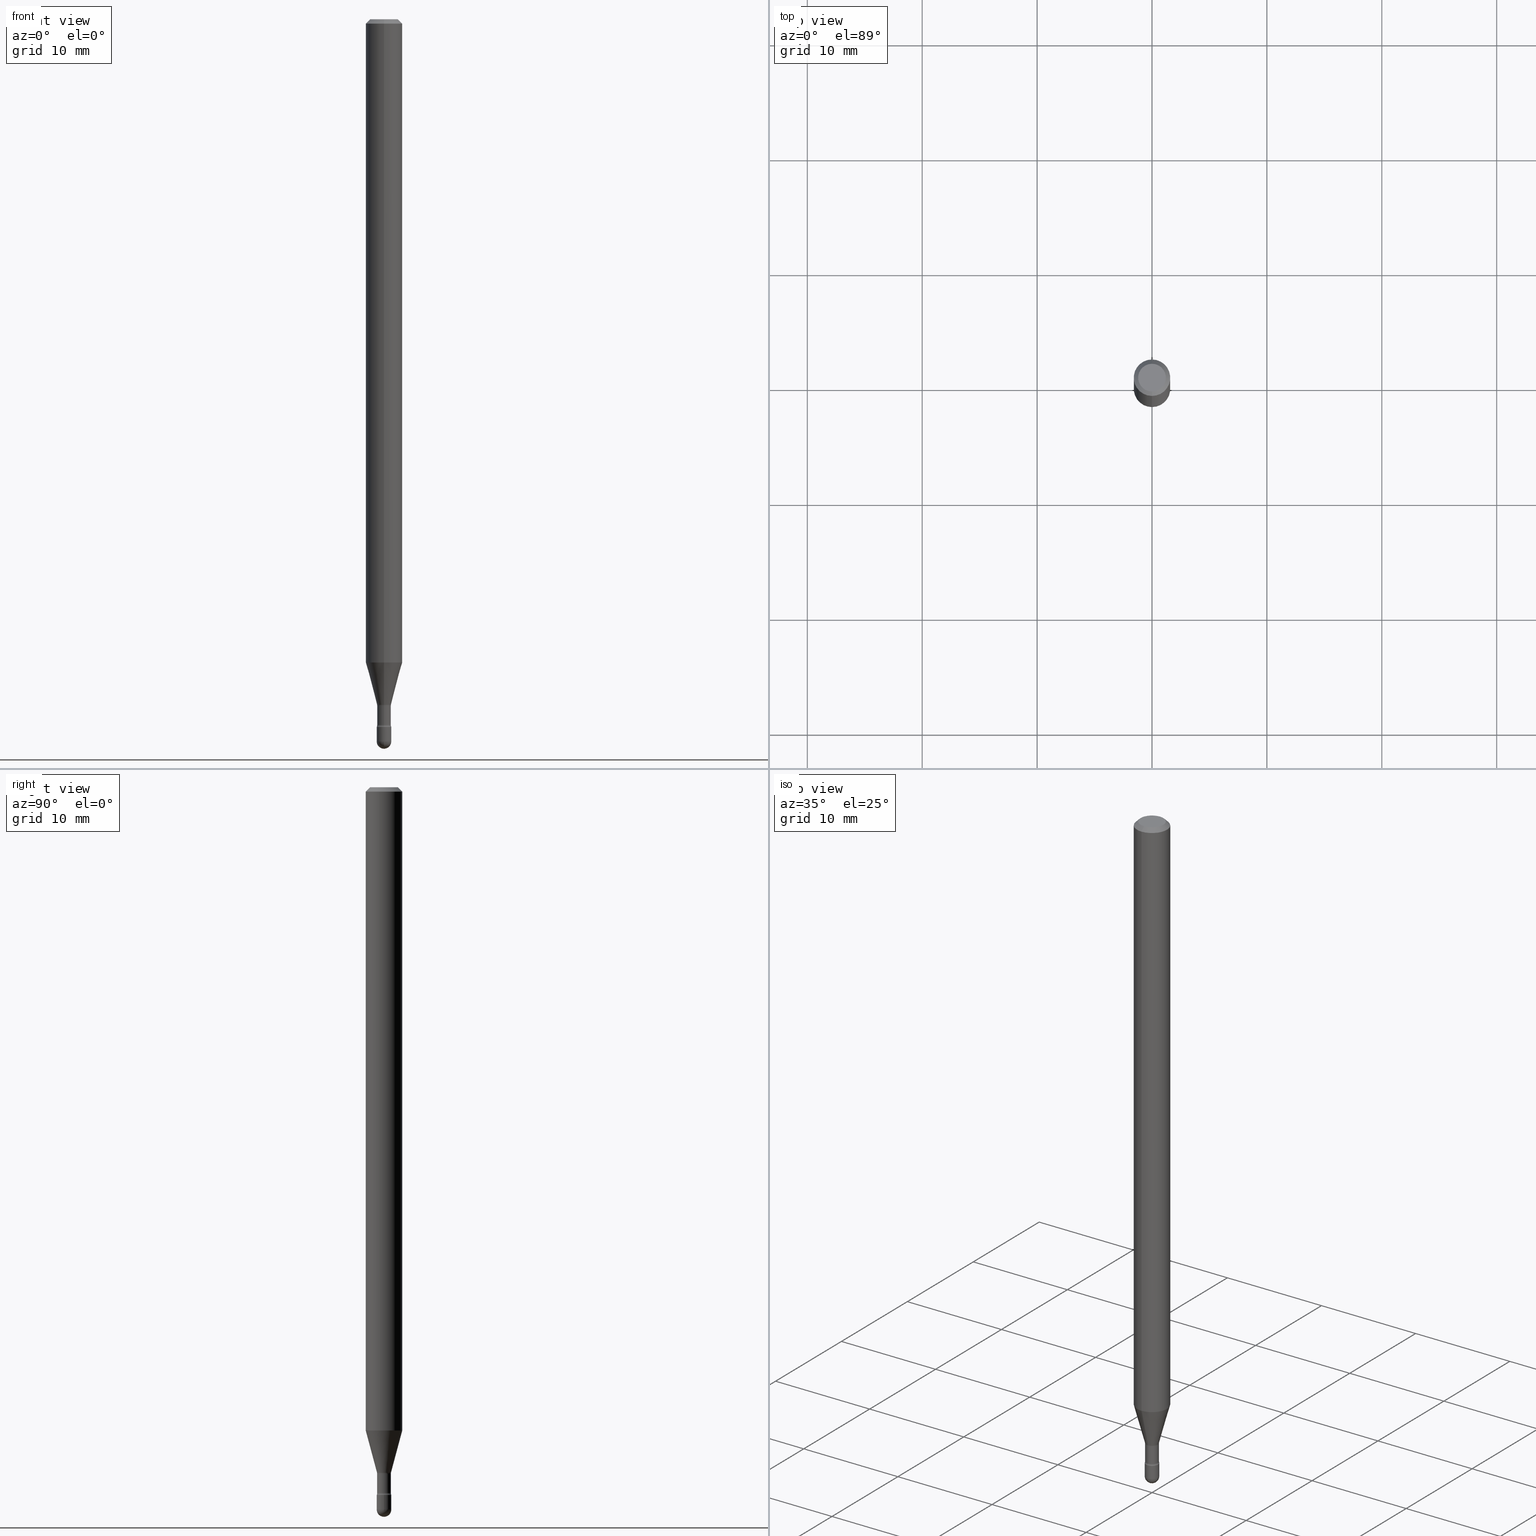
[diagram: canonical four-view strip — front | top / right | iso, engineering-drawing reading convention]
A machine part, canonical four-view strip (front | top / right | iso — engineering-drawing reading convention). The complete STEP part file that produces these views, byte-faithful:
ISO-10303-21;
HEADER;
FILE_DESCRIPTION (( 'STEP AP203' ),
    '1' );
FILE_NAME ('03815.STEP',
    '2024-04-09T20:34:50',
    ( '' ),
    ( '' ),
    'SwSTEP 2.0',
    'SolidWorks 2023',
    '' );
FILE_SCHEMA (( 'CONFIG_CONTROL_DESIGN' ));
ENDSEC;

DATA;
#1 = DIRECTION ( 'NONE',  ( -2.445460272345158402E-29, 3.491493559787710048E-15, 1.000000000000000000 ) ) ;
#2 = CARTESIAN_POINT ( 'NONE',  ( 5.930241160437010155E-29, -8.466871882485198128E-15, -2.425000000000000266 ) ) ;
#3 = VECTOR ( 'NONE', #316, 39.37007874015748143 ) ;
#4 = CARTESIAN_POINT ( 'NONE',  ( -1.745740669420974292E-16, -0.02500000000000847378, -2.425000000000000266 ) ) ;
#5 = AXIS2_PLACEMENT_3D ( 'NONE', #230, #402, #12 ) ;
#6 = DIRECTION ( 'NONE',  ( -6.982962677686265922E-15, -1.000000000000000000, 3.491493559787710442E-15 ) ) ;
#7 = EDGE_LOOP ( 'NONE', ( #455, #243, #286, #18 ) ) ;
#8 = DIRECTION ( 'NONE',  ( 7.105427357601001859E-15, 1.000000000000000000, 0.000000000000000000 ) ) ;
#9 = ORIENTED_EDGE ( 'NONE', *, *, #499, .F. ) ;
#10 = PRODUCT_DEFINITION_SHAPE ( 'NONE', 'NONE',  #401 ) ;
#11 = DIRECTION ( 'NONE',  ( -6.982962677686265922E-15, -1.000000000000000000, 4.370956789862821150E-15 ) ) ;
#12 = DIRECTION ( 'NONE',  ( 1.000000000000000000, -6.982962677686267499E-15, 4.876176775795936353E-29 ) ) ;
#13 = AXIS2_PLACEMENT_3D ( 'NONE', #206, #270, #528 ) ;
#14 = AXIS2_PLACEMENT_3D ( 'NONE', #27, #301, #423 ) ;
#15 = EDGE_CURVE ( 'NONE', #355, #415, #332, .T. ) ;
#16 = ORIENTED_EDGE ( 'NONE', *, *, #499, .T. ) ;
#17 = COORDINATED_UNIVERSAL_TIME_OFFSET ( 5, 0, .BEHIND. ) ;
#18 = ORIENTED_EDGE ( 'NONE', *, *, #19, .F. ) ;
#19 = EDGE_CURVE ( 'NONE', #410, #192, #193, .T. ) ;
#20 = AXIS2_PLACEMENT_3D ( 'NONE', #484, #348, #306 ) ;
#21 = APPROVAL_PERSON_ORGANIZATION ( #219, #463, #172 ) ;
#22 = VERTEX_POINT ( 'NONE', #290 ) ;
#23 = ORIENTED_EDGE ( 'NONE', *, *, #491, .F. ) ;
#24 = ORIENTED_EDGE ( 'NONE', *, *, #236, .T. ) ;
#25 = DIRECTION ( 'NONE',  ( -2.445460272345158683E-29, 3.491493559787710442E-15, 1.000000000000000000 ) ) ;
#26 = EDGE_LOOP ( 'NONE', ( #422, #505, #365, #23 ) ) ;
#27 = CARTESIAN_POINT ( 'NONE',  ( 6.052535295308213750E-29, -8.641416313636786609E-15, -2.475000000000000089 ) ) ;
#28 = AXIS2_PLACEMENT_3D ( 'NONE', #153, #287, #250 ) ;
#29 = VERTEX_POINT ( 'NONE', #466 ) ;
#30 = CIRCLE ( 'NONE', #549, 0.02500000000000000139 ) ;
#31 = CARTESIAN_POINT ( 'NONE',  ( 0.02500000000000000486, -8.728703347107863365E-15, -2.475000000000000089 ) ) ;
#32 = CARTESIAN_POINT ( 'NONE',  ( 2.023490802064160390E-45, -2.889145452837646256E-31, -8.274645157667861515E-17 ) ) ;
#33 = FACE_OUTER_BOUND ( 'NONE', #326, .T. ) ;
#34 = DIRECTION ( 'NONE',  ( 1.000000000000000000, -7.105427357601001070E-15, 4.926315658205488542E-29 ) ) ;
#35 = EDGE_LOOP ( 'NONE', ( #284, #66, #532, #108 ) ) ;
#36 = EDGE_CURVE ( 'NONE', #321, #469, #151, .T. ) ;
#37 = DATE_AND_TIME ( #42, #195 ) ;
#38 = CARTESIAN_POINT ( 'NONE',  ( 5.930261854998957144E-29, -8.466842246694628363E-15, -2.425000000000000266 ) ) ;
#39 = DATE_AND_TIME ( #254, #226 ) ;
#40 = PLANE ( 'NONE',  #394 ) ;
#41 = AXIS2_PLACEMENT_3D ( 'NONE', #115, #476, #367 ) ;
#42 = CALENDAR_DATE ( 2024, 9, 4 ) ;
#43 = DIRECTION ( 'NONE',  ( 6.982962677686265922E-15, 1.000000000000000000, -3.491493559787710442E-15 ) ) ;
#44 = DIRECTION ( 'NONE',  ( -1.807323732225330928E-15, -0.2588190451025182970, 0.9659258262890689783 ) ) ;
#45 = PERSON_AND_ORGANIZATION ( #276, #116 ) ;
#46 = DIRECTION ( 'NONE',  ( -6.982962677686265922E-15, -1.000000000000000000, 3.491493559787708075E-15 ) ) ;
#47 = CARTESIAN_POINT ( 'NONE',  ( 4.440892098501169490E-16, 0.06249999999999995837, -0.01500000000000030129 ) ) ;
#48 = CARTESIAN_POINT ( 'NONE',  ( 5.390894942624073445E-29, -7.696823042483457732E-15, -2.204450018504814590 ) ) ;
#49 = VERTEX_POINT ( 'NONE', #31 ) ;
#50 = AXIS2_PLACEMENT_3D ( 'NONE', #91, #34, #377 ) ;
#51 = PRODUCT_DEFINITION_FORMATION_WITH_SPECIFIED_SOURCE ( 'ANY', '', #403, .NOT_KNOWN. ) ;
#52 = APPROVAL_PERSON_ORGANIZATION ( #205, #564, #375 ) ;
#53 = CARTESIAN_POINT ( 'NONE',  ( -3.773273898774340269E-16, -0.04749999999999999362, 8.309949251323760570E-17 ) ) ;
#54 = EDGE_CURVE ( 'NONE', #196, #191, #459, .T. ) ;
#55 = VECTOR ( 'NONE', #341, 39.37007874015748143 ) ;
#56 = ORIENTED_EDGE ( 'NONE', *, *, #185, .T. ) ;
#57 = ORIENTED_EDGE ( 'NONE', *, *, #352, .T. ) ;
#58 = CIRCLE ( 'NONE', #20, 0.02500000000000000486 ) ;
#59 = SECURITY_CLASSIFICATION ( '', '', #129 ) ;
#60 = DIRECTION ( 'NONE',  ( -6.982962677686267499E-15, -1.000000000000000000, 0.000000000000000000 ) ) ;
#61 = DIRECTION ( 'NONE',  ( -2.445460272345158683E-29, 3.491493559787710442E-15, 1.000000000000000000 ) ) ;
#62 = ORIENTED_EDGE ( 'NONE', *, *, #283, .F. ) ;
#63 = EDGE_LOOP ( 'NONE', ( #496, #548, #362, #157 ) ) ;
#64 = FACE_OUTER_BOUND ( 'NONE', #546, .T. ) ;
#65 = EDGE_CURVE ( 'NONE', #49, #101, #525, .T. ) ;
#66 = ORIENTED_EDGE ( 'NONE', *, *, #543, .F. ) ;
#67 = EDGE_LOOP ( 'NONE', ( #235, #143, #500, #406 ) ) ;
#68 = CIRCLE ( 'NONE', #432, 0.02350000000000000352 ) ;
#69 = DIRECTION ( 'NONE',  ( -2.445460272345158402E-29, 3.491493559787710048E-15, 1.000000000000000000 ) ) ;
#70 = DIRECTION ( 'NONE',  ( -2.445460272345158402E-29, 3.491493559787710048E-15, 1.000000000000000000 ) ) ;
#71 = COORDINATED_UNIVERSAL_TIME_OFFSET ( 5, 0, .BEHIND. ) ;
#72 = ORIENTED_EDGE ( 'NONE', *, *, #248, .F. ) ;
#73 = FACE_OUTER_BOUND ( 'NONE', #327, .T. ) ;
#74 = DIRECTION ( 'NONE',  ( -2.445460272345158402E-29, 3.491493559787710048E-15, 1.000000000000000000 ) ) ;
#75 = EDGE_CURVE ( 'NONE', #241, #29, #477, .T. ) ;
#76 = CARTESIAN_POINT ( 'NONE',  ( 5.914272527905343055E-29, -8.444013725215714647E-15, -2.418461651584689065 ) ) ;
#77 = CARTESIAN_POINT ( 'NONE',  ( 6.052535295308213750E-29, -8.641416313636786609E-15, -2.475000000000000089 ) ) ;
#78 = DIRECTION ( 'NONE',  ( 1.000000000000000000, -6.982962677686254878E-15, 0.000000000000000000 ) ) ;
#79 = CARTESIAN_POINT ( 'NONE',  ( 6.052535295308213750E-29, -8.641416313636786609E-15, -2.475000000000000089 ) ) ;
#80 = PERSON_AND_ORGANIZATION_ROLE ( 'classification_officer' ) ;
#81 = CARTESIAN_POINT ( 'NONE',  ( 5.751660904300198337E-29, -8.211904823212965684E-15, -2.351974787463811278 ) ) ;
#82 = CIRCLE ( 'NONE', #502, 0.02401111260566398189 ) ;
#83 = CIRCLE ( 'NONE', #152, 0.02499999999999993894 ) ;
#84 = PLANE ( 'NONE',  #510 ) ;
#85 = DATE_AND_TIME ( #213, #274 ) ;
#86 = FACE_OUTER_BOUND ( 'NONE', #465, .T. ) ;
#87 = CARTESIAN_POINT ( 'NONE',  ( 5.751680975676666487E-29, -8.211876079859469508E-15, -2.351974787463811278 ) ) ;
#88 = CARTESIAN_POINT ( 'NONE',  ( 6.052535295308213750E-29, -8.641416313636786609E-15, -2.475000000000000089 ) ) ;
#89 = ADVANCED_FACE ( 'NONE', ( #344 ), #136, .T. ) ;
#90 = CC_DESIGN_PERSON_AND_ORGANIZATION_ASSIGNMENT ( #208, #560, ( #51 ) ) ;
#91 = CARTESIAN_POINT ( 'NONE',  ( 2.735589532676977326E-16, 0.03849999999999156874, -2.418461651584689065 ) ) ;
#92 = CARTESIAN_POINT ( 'NONE',  ( 5.742166928912329898E-29, -8.198349847776076090E-15, -2.348092501787273356 ) ) ;
#93 = AXIS2_PLACEMENT_3D ( 'NONE', #87, #438, #6 ) ;
#94 = AXIS2_PLACEMENT_3D ( 'NONE', #217, #69, #123 ) ;
#95 = EDGE_CURVE ( 'NONE', #49, #242, #223, .T. ) ;
#96 = DIRECTION ( 'NONE',  ( 1.000000000000000000, -6.982962677686265922E-15, 4.883557194083112340E-29 ) ) ;
#97 = APPLICATION_CONTEXT ( 'configuration controlled 3d designs of mechanical parts and assemblies' ) ;
#98 = CIRCLE ( 'NONE', #382, 0.04749999999999999362 ) ;
#99 = ORIENTED_EDGE ( 'NONE', *, *, #543, .T. ) ;
#100 = EDGE_CURVE ( 'NONE', #410, #146, #260, .T. ) ;
#101 = VERTEX_POINT ( 'NONE', #215 ) ;
#102 = EDGE_LOOP ( 'NONE', ( #240, #295, #371, #199 ) ) ;
#103 = ORIENTED_EDGE ( 'NONE', *, *, #236, .F. ) ;
#104 = AXIS2_PLACEMENT_3D ( 'NONE', #76, #472, #137 ) ;
#105 = ORIENTED_EDGE ( 'NONE', *, *, #450, .T. ) ;
#106 =( NAMED_UNIT ( * ) SI_UNIT ( $, .STERADIAN. ) SOLID_ANGLE_UNIT ( ) );
#107 = ADVANCED_FACE ( 'NONE', ( #393 ), #369, .F. ) ;
#108 = ORIENTED_EDGE ( 'NONE', *, *, #227, .T. ) ;
#109 = CARTESIAN_POINT ( 'NONE',  ( 0.000000000000000000, 0.000000000000000000, 0.000000000000000000 ) ) ;
#110 = VERTEX_POINT ( 'NONE', #47 ) ;
#111 = DIRECTION ( 'NONE',  ( -1.000000000000000000, 6.982962677686266711E-15, -4.883557194083112901E-29 ) ) ;
#112 = CLOSED_SHELL ( 'NONE', ( #519, #325, #288, #399, #398 ) ) ;
#113 = ORIENTED_EDGE ( 'NONE', *, *, #389, .F. ) ;
#114 = VECTOR ( 'NONE', #559, 39.37007874015748143 ) ;
#115 = CARTESIAN_POINT ( 'NONE',  ( 3.668190408517757992E-31, -5.237240339681594062E-17, -0.01500000000000008271 ) ) ;
#116 = ORGANIZATION ( 'UNSPECIFIED', 'UNSPECIFIED', '' ) ;
#117 = ADVANCED_FACE ( 'NONE', ( #349 ), #404, .T. ) ;
#118 = APPLICATION_PROTOCOL_DEFINITION ( 'international standard', 'config_control_design', 1994, #439 ) ;
#119 = CARTESIAN_POINT ( 'NONE',  ( 5.914251889140615573E-29, -8.444043281101490470E-15, -2.418461651584689065 ) ) ;
#120 = CARTESIAN_POINT ( 'NONE',  ( 5.751680975676666487E-29, -8.211876079859469508E-15, -2.351974787463811278 ) ) ;
#121 = LINE ( 'NONE', #381, #139 ) ;
#122 = ORIENTED_EDGE ( 'NONE', *, *, #489, .F. ) ;
#123 = DIRECTION ( 'NONE',  ( -6.982962677686265922E-15, -1.000000000000000000, 3.491493559787710837E-15 ) ) ;
#124 = APPROVAL_DATE_TIME ( #39, #239 ) ;
#125 = LINE ( 'NONE', #324, #346 ) ;
#126 = CARTESIAN_POINT ( 'NONE',  ( -1.676687031750163775E-16, -0.02401111260567218020, -2.348092501787273356 ) ) ;
#127 = DIRECTION ( 'NONE',  ( -6.982962677686267499E-15, -1.000000000000000000, 0.000000000000000000 ) ) ;
#128 = DIRECTION ( 'NONE',  ( -6.982962677686265922E-15, -1.000000000000000000, 3.491493559787710442E-15 ) ) ;
#129 = SECURITY_CLASSIFICATION_LEVEL ( 'unclassified' ) ;
#130 = DIRECTION ( 'NONE',  ( -2.445460272345158402E-29, 3.491493559787710048E-15, 1.000000000000000000 ) ) ;
#131 = ADVANCED_FACE ( 'NONE', ( #86 ), #174, .F. ) ;
#132 = CIRCLE ( 'NONE', #145, 0.02350000000000000352 ) ;
#133 = AXIS2_PLACEMENT_3D ( 'NONE', #304, #261, #252 ) ;
#134 = DIRECTION ( 'NONE',  ( -6.982962677686265922E-15, -1.000000000000000000, 3.491493559787710442E-15 ) ) ;
#135 = FACE_OUTER_BOUND ( 'NONE', #368, .T. ) ;
#136 = CYLINDRICAL_SURFACE ( 'NONE', #285, 0.02349999999999999312 ) ;
#137 = DIRECTION ( 'NONE',  ( -6.982962677686265922E-15, -1.000000000000000000, 3.491493559787710442E-15 ) ) ;
#138 = CC_DESIGN_DATE_AND_TIME_ASSIGNMENT ( #526, #351, ( #401 ) ) ;
#139 = VECTOR ( 'NONE', #516, 39.37007874015748143 ) ;
#140 = DIRECTION ( 'NONE',  ( -6.982962677686265133E-15, -1.000000000000000000, 0.000000000000000000 ) ) ;
#141 = ORIENTED_EDGE ( 'NONE', *, *, #75, .T. ) ;
#142 = LENGTH_MEASURE_WITH_UNIT ( LENGTH_MEASURE( 0.02539999999999999897 ), #231 );
#143 = ORIENTED_EDGE ( 'NONE', *, *, #248, .T. ) ;
#144 = ADVANCED_FACE ( 'NONE', ( #135 ), #411, .T. ) ;
#145 = AXIS2_PLACEMENT_3D ( 'NONE', #170, #340, #173 ) ;
#146 = VERTEX_POINT ( 'NONE', #440 ) ;
#147 = EDGE_CURVE ( 'NONE', #415, #192, #132, .T. ) ;
#148 = ORIENTED_EDGE ( 'NONE', *, *, #189, .F. ) ;
#149 = ORIENTED_EDGE ( 'NONE', *, *, #289, .T. ) ;
#150 =( NAMED_UNIT ( * ) PLANE_ANGLE_UNIT ( ) SI_UNIT ( $, .RADIAN. ) );
#151 = CIRCLE ( 'NONE', #28, 0.02499999999999993894 ) ;
#152 = AXIS2_PLACEMENT_3D ( 'NONE', #229, #96, #277 ) ;
#153 = CARTESIAN_POINT ( 'NONE',  ( 6.052535295308213750E-29, -8.641416313636786609E-15, -2.475000000000000089 ) ) ;
#154 = CARTESIAN_POINT ( 'NONE',  ( -1.776356839399642894E-16, -0.02500000000000861256, -2.475000000000000089 ) ) ;
#155 = ORIENTED_EDGE ( 'NONE', *, *, #65, .T. ) ;
#156 = FACE_OUTER_BOUND ( 'NONE', #501, .T. ) ;
#157 = ORIENTED_EDGE ( 'NONE', *, *, #561, .F. ) ;
#158 = DIRECTION ( 'NONE',  ( -1.000000000000000000, 6.982962677686265922E-15, -4.883557194083112340E-29 ) ) ;
#159 = DIRECTION ( 'NONE',  ( -6.982962677686265922E-15, -1.000000000000000000, 0.000000000000000000 ) ) ;
#160 = DIRECTION ( 'NONE',  ( -6.982962677686265922E-15, -1.000000000000000000, 3.483106191921935554E-15 ) ) ;
#161 = APPROVAL_STATUS ( 'not_yet_approved' ) ;
#162 = DIRECTION ( 'NONE',  ( -1.000000000000000000, 6.982962677686265922E-15, -4.883557194083112340E-29 ) ) ;
#163 = AXIS2_PLACEMENT_3D ( 'NONE', #188, #452, #358 ) ;
#164 = CIRCLE ( 'NONE', #249, 0.02401111260566398189 ) ;
#165 = CYLINDRICAL_SURFACE ( 'NONE', #94, 0.06250000000000000000 ) ;
#166 = DIRECTION ( 'NONE',  ( -2.445468806185136597E-29, 3.491481338843145583E-15, 1.000000000000000000 ) ) ;
#167 = PERSON_AND_ORGANIZATION ( #276, #116 ) ;
#168 = CARTESIAN_POINT ( 'NONE',  ( 2.023490802064160390E-45, -2.889145452837646256E-31, -8.274645157667861515E-17 ) ) ;
#169 = DIRECTION ( 'NONE',  ( -2.445468806185136597E-29, 3.491481338843145583E-15, 1.000000000000000000 ) ) ;
#170 = CARTESIAN_POINT ( 'NONE',  ( 5.751660904300198337E-29, -8.211904823212965684E-15, -2.351974787463811278 ) ) ;
#171 = EDGE_CURVE ( 'NONE', #196, #410, #82, .T. ) ;
#172 = APPROVAL_ROLE ( '' ) ;
#173 = DIRECTION ( 'NONE',  ( -6.982962677686265922E-15, -1.000000000000000000, 0.000000000000000000 ) ) ;
#174 = TOROIDAL_SURFACE ( 'NONE', #104, 0.03850000000000001338, 0.01500000000000002373 ) ;
#175 = CIRCLE ( 'NONE', #405, 0.01500000000000001853 ) ;
#176 = PERSON_AND_ORGANIZATION ( #276, #116 ) ;
#177 = CYLINDRICAL_SURFACE ( 'NONE', #492, 0.02349999999999999312 ) ;
#178 = CARTESIAN_POINT ( 'NONE',  ( 5.742166928912329898E-29, -8.198349847776076090E-15, -2.348092501787273356 ) ) ;
#179 = CARTESIAN_POINT ( 'NONE',  ( -1.169113584055446105E-44, 1.669184350826100908E-30, 4.780733988912460139E-16 ) ) ;
#180 = CC_DESIGN_PERSON_AND_ORGANIZATION_ASSIGNMENT ( #431, #245, ( #403 ) ) ;
#181 = ORIENTED_EDGE ( 'NONE', *, *, #460, .T. ) ;
#182 = CIRCLE ( 'NONE', #264, 0.02500000000000000486 ) ;
#183 = CC_DESIGN_SECURITY_CLASSIFICATION ( #59, ( #51 ) ) ;
#184 = ADVANCED_FACE ( 'NONE', ( #214 ), #177, .T. ) ;
#185 = EDGE_CURVE ( 'NONE', #495, #544, #454, .T. ) ;
#186 = ORIENTED_EDGE ( 'NONE', *, *, #460, .F. ) ;
#187 = CARTESIAN_POINT ( 'NONE',  ( -1.640996229256272026E-16, -0.02349999999999999312, 5.601234975462572056E-16 ) ) ;
#188 = CARTESIAN_POINT ( 'NONE',  ( 3.668190408517757992E-31, -5.237240339681594062E-17, -0.01500000000000008271 ) ) ;
#189 = EDGE_CURVE ( 'NONE', #469, #49, #58, .T. ) ;
#190 = DATE_AND_TIME ( #541, #462 ) ;
#191 = VERTEX_POINT ( 'NONE', #475 ) ;
#192 = VERTEX_POINT ( 'NONE', #315 ) ;
#193 = CIRCLE ( 'NONE', #200, 0.01500000000000002720 ) ;
#194 = AXIS2_PLACEMENT_3D ( 'NONE', #79, #166, #512 ) ;
#195 = LOCAL_TIME ( 16, 34, 50.00000000000000000, #257 ) ;
#196 = VERTEX_POINT ( 'NONE', #554 ) ;
#197 = EDGE_CURVE ( 'NONE', #146, #191, #538, .T. ) ;
#198 = VERTEX_POINT ( 'NONE', #267 ) ;
#199 = ORIENTED_EDGE ( 'NONE', *, *, #283, .T. ) ;
#200 = AXIS2_PLACEMENT_3D ( 'NONE', #555, #162, #60 ) ;
#201 = AXIS2_PLACEMENT_3D ( 'NONE', #504, #527, #159 ) ;
#202 = ORIENTED_EDGE ( 'NONE', *, *, #54, .T. ) ;
#203 = ORIENTED_EDGE ( 'NONE', *, *, #347, .T. ) ;
#204 = ADVANCED_FACE ( 'NONE', ( #429 ), #40, .F. ) ;
#205 = PERSON_AND_ORGANIZATION ( #276, #116 ) ;
#206 = CARTESIAN_POINT ( 'NONE',  ( 5.742166928912329898E-29, -8.198349847776076090E-15, -2.348092501787273356 ) ) ;
#207 = CARTESIAN_POINT ( 'NONE',  ( -1.169113584055446105E-44, 1.669184350826100908E-30, 4.780733988912460139E-16 ) ) ;
#208 = PERSON_AND_ORGANIZATION ( #276, #116 ) ;
#209 = DIRECTION ( 'NONE',  ( -2.445468806185136877E-29, 3.491481338843145188E-15, 1.000000000000000000 ) ) ;
#210 = TOROIDAL_SURFACE ( 'NONE', #322, 0.03850000000000001338, 0.01500000000000002373 ) ;
#211 = DIRECTION ( 'NONE',  ( -6.982962677686266711E-15, -1.000000000000000000, 3.491493559787710837E-15 ) ) ;
#212 = CC_DESIGN_APPROVAL ( #463, ( #59 ) ) ;
#213 = CALENDAR_DATE ( 2024, 9, 4 ) ;
#214 = FACE_OUTER_BOUND ( 'NONE', #63, .T. ) ;
#215 = CARTESIAN_POINT ( 'NONE',  ( 1.745740669422169663E-16, 0.02499999999999133124, -2.475000000000000089 ) ) ;
#216 = PERSON_AND_ORGANIZATION_ROLE ( 'creator' ) ;
#217 = CARTESIAN_POINT ( 'NONE',  ( -1.169113584055446105E-44, 1.669184350826100908E-30, 4.780733988912460139E-16 ) ) ;
#218 = CARTESIAN_POINT ( 'NONE',  ( 3.668190408517757992E-31, -5.237240339681594062E-17, -0.01500000000000008271 ) ) ;
#219 = PERSON_AND_ORGANIZATION ( #276, #116 ) ;
#220 = CARTESIAN_POINT ( 'NONE',  ( 3.316907271900976096E-16, 0.04749999999999999362, 3.181752956736755865E-17 ) ) ;
#221 = DIRECTION ( 'NONE',  ( 6.982962677686265922E-15, 1.000000000000000000, -3.483106191921935554E-15 ) ) ;
#222 = FACE_OUTER_BOUND ( 'NONE', #508, .T. ) ;
#223 = LINE ( 'NONE', #434, #3 ) ;
#224 = VECTOR ( 'NONE', #209, 39.37007874015748143 ) ;
#225 = FACE_OUTER_BOUND ( 'NONE', #244, .T. ) ;
#226 = LOCAL_TIME ( 16, 34, 50.00000000000000000, #71 ) ;
#227 = EDGE_CURVE ( 'NONE', #192, #415, #68, .T. ) ;
#228 = CALENDAR_DATE ( 2024, 9, 4 ) ;
#229 = CARTESIAN_POINT ( 'NONE',  ( 6.052535295308213750E-29, -8.641416313636786609E-15, -2.475000000000000089 ) ) ;
#230 = CARTESIAN_POINT ( 'NONE',  ( 0.000000000000000000, 0.000000000000000000, 0.000000000000000000 ) ) ;
#231 =( LENGTH_UNIT ( ) NAMED_UNIT ( * ) SI_UNIT ( $, .METRE. ) );
#232 = VECTOR ( 'NONE', #44, 39.37007874015748143 ) ;
#233 = CONICAL_SURFACE ( 'NONE', #421, 0.02401111260566398189, 0.2617993877991502960 ) ;
#234 = ORIENTED_EDGE ( 'NONE', *, *, #185, .F. ) ;
#235 = ORIENTED_EDGE ( 'NONE', *, *, #482, .F. ) ;
#236 = EDGE_CURVE ( 'NONE', #22, #198, #562, .T. ) ;
#237 = CONICAL_SURFACE ( 'NONE', #41, 0.06250000000000000000, 0.7853981633974483900 ) ;
#238 = AXIS2_PLACEMENT_3D ( 'NONE', #48, #487, #11 ) ;
#239 = APPROVAL ( #161, 'UNSPECIFIED' ) ;
#240 = ORIENTED_EDGE ( 'NONE', *, *, #347, .F. ) ;
#241 = VERTEX_POINT ( 'NONE', #4 ) ;
#242 = VERTEX_POINT ( 'NONE', #514 ) ;
#243 = ORIENTED_EDGE ( 'NONE', *, *, #542, .T. ) ;
#244 = EDGE_LOOP ( 'NONE', ( #57, #24, #453, #506, #155 ) ) ;
#245 = PERSON_AND_ORGANIZATION_ROLE ( 'design_owner' ) ;
#246 = EDGE_CURVE ( 'NONE', #29, #241, #294, .T. ) ;
#247 = CIRCLE ( 'NONE', #163, 0.06250000000000000000 ) ;
#248 = EDGE_CURVE ( 'NONE', #355, #29, #353, .T. ) ;
#249 = AXIS2_PLACEMENT_3D ( 'NONE', #178, #530, #140 ) ;
#250 = DIRECTION ( 'NONE',  ( -7.105427357601001070E-15, -1.000000000000000000, 0.000000000000000000 ) ) ;
#251 = DIRECTION ( 'NONE',  ( 1.000000000000000000, -6.982962677686253300E-15, 0.000000000000000000 ) ) ;
#252 = DIRECTION ( 'NONE',  ( 1.000000000000000000, -6.982962677686254878E-15, 0.000000000000000000 ) ) ;
#253 = CARTESIAN_POINT ( 'NONE',  ( 1.723066134218835387E-16, 0.02349999999999154501, -2.418461651584689065 ) ) ;
#254 = CALENDAR_DATE ( 2024, 9, 4 ) ;
#255 = CARTESIAN_POINT ( 'NONE',  ( 3.840629472727447874E-16, 0.04749999999999999362, -2.485923956665948360E-16 ) ) ;
#256 = ORIENTED_EDGE ( 'NONE', *, *, #489, .T. ) ;
#257 = COORDINATED_UNIVERSAL_TIME_OFFSET ( 5, 0, .BEHIND. ) ;
#258 = FACE_OUTER_BOUND ( 'NONE', #356, .T. ) ;
#259 = CARTESIAN_POINT ( 'NONE',  ( 5.742166928912329898E-29, -8.198349847776076090E-15, -2.348092501787273356 ) ) ;
#260 = LINE ( 'NONE', #126, #232 ) ;
#261 = DIRECTION ( 'NONE',  ( -2.445468806185136597E-29, 3.491481338843145583E-15, 1.000000000000000000 ) ) ;
#262 = DIRECTION ( 'NONE',  ( -2.445460272345158402E-29, 3.491493559787710048E-15, 1.000000000000000000 ) ) ;
#263 = CARTESIAN_POINT ( 'NONE',  ( 1.706092163947804984E-16, 0.02401111260565578012, -2.348092501787273356 ) ) ;
#264 = AXIS2_PLACEMENT_3D ( 'NONE', #507, #169, #251 ) ;
#265 = AXIS2_PLACEMENT_3D ( 'NONE', #374, #342, #553 ) ;
#266 = DATE_TIME_ROLE ( 'classification_date' ) ;
#267 = CARTESIAN_POINT ( 'NONE',  ( -0.02500000000000000139, -8.376493596225682282E-15, -2.425000000000000266 ) ) ;
#268 = DIRECTION ( 'NONE',  ( 1.000000000000000000, -6.982962677686253300E-15, 0.000000000000000000 ) ) ;
#269 = DIRECTION ( 'NONE',  ( -6.982962677686265922E-15, -1.000000000000000000, 3.491493559787710837E-15 ) ) ;
#270 = DIRECTION ( 'NONE',  ( -2.445460272345158402E-29, 3.491493559787710048E-15, 1.000000000000000000 ) ) ;
#271 = DIRECTION ( 'NONE',  ( -6.982962677686265922E-15, -1.000000000000000000, 3.491493559787708075E-15 ) ) ;
#272 = EDGE_CURVE ( 'NONE', #544, #110, #121, .T. ) ;
#273 = DIRECTION ( 'NONE',  ( -2.445460272345158402E-29, 3.491493559787710048E-15, 1.000000000000000000 ) ) ;
#274 = LOCAL_TIME ( 16, 34, 50.00000000000000000, #478 ) ;
#275 = ORIENTED_EDGE ( 'NONE', *, *, #100, .F. ) ;
#276 = PERSON ( 'UNSPECIFIED', 'UNSPECIFIED', 'UNSPECIFIED', ('UNSPECIFIED'), ('UNSPECIFIED'), ('UNSPECIFIED') ) ;
#277 = DIRECTION ( 'NONE',  ( 6.982962677686265922E-15, 1.000000000000000000, 0.000000000000000000 ) ) ;
#278 = EDGE_CURVE ( 'NONE', #191, #110, #125, .T. ) ;
#279 = AXIS2_PLACEMENT_3D ( 'NONE', #437, #262, #308 ) ;
#280 = CIRCLE ( 'NONE', #539, 0.02349999999999998965 ) ;
#281 = ORIENTED_EDGE ( 'NONE', *, *, #197, .T. ) ;
#282 = ORIENTED_EDGE ( 'NONE', *, *, #36, .F. ) ;
#283 = EDGE_CURVE ( 'NONE', #110, #413, #247, .T. ) ;
#284 = ORIENTED_EDGE ( 'NONE', *, *, #542, .F. ) ;
#285 = AXIS2_PLACEMENT_3D ( 'NONE', #179, #300, #271 ) ;
#286 = ORIENTED_EDGE ( 'NONE', *, *, #147, .T. ) ;
#287 = DIRECTION ( 'NONE',  ( -1.000000000000000000, 7.105427357601001070E-15, -4.926315508542082329E-29 ) ) ;
#288 = ADVANCED_FACE ( 'NONE', ( #376 ), #84, .T. ) ;
#289 = EDGE_CURVE ( 'NONE', #413, #110, #361, .T. ) ;
#290 = CARTESIAN_POINT ( 'NONE',  ( -0.02500000000000000486, -8.376493596225682282E-15, -2.475000000000000089 ) ) ;
#291 = ADVANCED_FACE ( 'NONE', ( #222 ), #521, .T. ) ;
#292 = DIRECTION ( 'NONE',  ( 6.982962677686266711E-15, 1.000000000000000000, 0.000000000000000000 ) ) ;
#293 = CLOSED_SHELL ( 'NONE', ( #107, #184, #299, #359, #291, #144, #490, #488, #117, #204, #414, #131, #89, #314 ) ) ;
#294 = CIRCLE ( 'NONE', #557, 0.02500000000000000139 ) ;
#295 = ORIENTED_EDGE ( 'NONE', *, *, #409, .F. ) ;
#296 = DIRECTION ( 'NONE',  ( 1.000000000000000000, 0.000000000000000000, 0.000000000000000000 ) ) ;
#297 = FACE_OUTER_BOUND ( 'NONE', #364, .T. ) ;
#298 = DIRECTION ( 'NONE',  ( -6.982962677686265133E-15, -1.000000000000000000, 0.000000000000000000 ) ) ;
#299 = ADVANCED_FACE ( 'NONE', ( #474 ), #210, .F. ) ;
#300 = DIRECTION ( 'NONE',  ( -2.445460272345158402E-29, 3.491493559787710048E-15, 1.000000000000000000 ) ) ;
#301 = DIRECTION ( 'NONE',  ( -1.000000000000000000, 6.982962677686266711E-15, -4.883557194083112901E-29 ) ) ;
#302 = DESIGN_CONTEXT ( 'detailed design', #97, 'design' ) ;
#303 = DIRECTION ( 'NONE',  ( 0.000000000000000000, 0.000000000000000000, 1.000000000000000000 ) ) ;
#304 = CARTESIAN_POINT ( 'NONE',  ( 5.930261854998957144E-29, -8.466842246694628363E-15, -2.425000000000000266 ) ) ;
#305 = CARTESIAN_POINT ( 'NONE',  ( 5.914272527905343055E-29, -8.444013725215714647E-15, -2.418461651584689065 ) ) ;
#306 = DIRECTION ( 'NONE',  ( 1.000000000000000000, -6.982962677686253300E-15, 0.000000000000000000 ) ) ;
#307 = LINE ( 'NONE', #416, #480 ) ;
#308 = DIRECTION ( 'NONE',  ( -6.982962677686265922E-15, -1.000000000000000000, 4.370956789862821150E-15 ) ) ;
#309 = DIRECTION ( 'NONE',  ( 2.445460272345158402E-29, -3.491493559787710048E-15, -1.000000000000000000 ) ) ;
#310 = AXIS2_PLACEMENT_3D ( 'NONE', #442, #396, #8 ) ;
#311 = UNCERTAINTY_MEASURE_WITH_UNIT (LENGTH_MEASURE( 1.000000000000000082E-05 ), #317, 'distance_accuracy_value', 'NONE');
#312 = CARTESIAN_POINT ( 'NONE',  ( -4.287811248607203282E-16, -0.06250000000000005551, -0.01499999999999986587 ) ) ;
#313 = CC_DESIGN_DATE_AND_TIME_ASSIGNMENT ( #85, #266, ( #59 ) ) ;
#314 = ADVANCED_FACE ( 'NONE', ( #335 ), #461, .F. ) ;
#315 = CARTESIAN_POINT ( 'NONE',  ( -1.640996229255697637E-16, -0.02350000000000821571, -2.351974787463811278 ) ) ;
#316 = DIRECTION ( 'NONE',  ( -2.445468806185136877E-29, 3.491481338843145188E-15, 1.000000000000000000 ) ) ;
#317 =( CONVERSION_BASED_UNIT ( 'INCH', #142 ) LENGTH_UNIT ( ) NAMED_UNIT ( #383 ) );
#318 = CC_DESIGN_APPROVAL ( #564, ( #401 ) ) ;
#319 = DIRECTION ( 'NONE',  ( -6.982962677686265133E-15, -1.000000000000000000, 0.000000000000000000 ) ) ;
#320 = ORIENTED_EDGE ( 'NONE', *, *, #482, .T. ) ;
#321 = VERTEX_POINT ( 'NONE', #390 ) ;
#322 = AXIS2_PLACEMENT_3D ( 'NONE', #305, #379, #128 ) ;
#323 =( GEOMETRIC_REPRESENTATION_CONTEXT ( 3 ) GLOBAL_UNCERTAINTY_ASSIGNED_CONTEXT ( ( #311 ) ) GLOBAL_UNIT_ASSIGNED_CONTEXT ( ( #317, #150, #106 ) ) REPRESENTATION_CONTEXT ( 'NONE', 'WORKASPACE' ) );
#324 = CARTESIAN_POINT ( 'NONE',  ( 4.440892098500625669E-16, 0.06250000000000000000, 2.598550514045141853E-16 ) ) ;
#325 = ADVANCED_FACE ( 'NONE', ( #33 ), #483, .T. ) ;
#326 = EDGE_LOOP ( 'NONE', ( #9, #449, #113, #357 ) ) ;
#327 = EDGE_LOOP ( 'NONE', ( #282, #16, #536, #148 ) ) ;
#328 = AXIS2_PLACEMENT_3D ( 'NONE', #345, #397, #446 ) ;
#329 = CIRCLE ( 'NONE', #201, 0.02349999999999998965 ) ;
#330 = MANIFOLD_SOLID_BREP ( 'Body-Move/Copy2[1]', #112 ) ;
#331 = ORIENTED_EDGE ( 'NONE', *, *, #75, .F. ) ;
#332 = LINE ( 'NONE', #464, #443 ) ;
#333 = CARTESIAN_POINT ( 'NONE',  ( -2.688440630908621965E-16, -0.03850000000000845801, -2.418461651584689065 ) ) ;
#334 = ORIENTED_EDGE ( 'NONE', *, *, #95, .T. ) ;
#335 = FACE_OUTER_BOUND ( 'NONE', #35, .T. ) ;
#336 = AXIS2_PLACEMENT_3D ( 'NONE', #218, #70, #160 ) ;
#337 = ORIENTED_EDGE ( 'NONE', *, *, #278, .F. ) ;
#338 = CC_DESIGN_PERSON_AND_ORGANIZATION_ASSIGNMENT ( #45, #216, ( #401 ) ) ;
#339 = LINE ( 'NONE', #312, #114 ) ;
#340 = DIRECTION ( 'NONE',  ( -2.445460272345158402E-29, 3.491493559787710048E-15, 1.000000000000000000 ) ) ;
#341 = DIRECTION ( 'NONE',  ( 1.839019923739601104E-15, 0.2588190451025250693, 0.9659258262890670910 ) ) ;
#342 = DIRECTION ( 'NONE',  ( -2.445460272345158122E-29, 3.491493559787710442E-15, 1.000000000000000000 ) ) ;
#343 = DIRECTION ( 'NONE',  ( -6.982962677686266711E-15, -1.000000000000000000, 3.491493559787710837E-15 ) ) ;
#344 = FACE_OUTER_BOUND ( 'NONE', #456, .T. ) ;
#345 = CARTESIAN_POINT ( 'NONE',  ( 5.930241160437010155E-29, -8.466871882485198128E-15, -2.425000000000000266 ) ) ;
#346 = VECTOR ( 'NONE', #444, 39.37007874015748143 ) ;
#347 = EDGE_CURVE ( 'NONE', #495, #413, #339, .T. ) ;
#348 = DIRECTION ( 'NONE',  ( -2.445468806185136597E-29, 3.491481338843145583E-15, 1.000000000000000000 ) ) ;
#349 = FACE_OUTER_BOUND ( 'NONE', #102, .T. ) ;
#350 = CARTESIAN_POINT ( 'NONE',  ( -1.640996229255680380E-16, -0.02350000000000843081, -2.418461651584689065 ) ) ;
#351 = DATE_TIME_ROLE ( 'creation_date' ) ;
#352 = EDGE_CURVE ( 'NONE', #101, #22, #445, .T. ) ;
#353 = CIRCLE ( 'NONE', #50, 0.01500000000000001853 ) ;
#354 = CC_DESIGN_PERSON_AND_ORGANIZATION_ASSIGNMENT ( #167, #80, ( #59 ) ) ;
#355 = VERTEX_POINT ( 'NONE', #253 ) ;
#356 = EDGE_LOOP ( 'NONE', ( #337, #373, #181, #62 ) ) ;
#357 = ORIENTED_EDGE ( 'NONE', *, *, #352, .F. ) ;
#358 = DIRECTION ( 'NONE',  ( -6.982962677686265922E-15, -1.000000000000000000, 3.483106191921935554E-15 ) ) ;
#359 = ADVANCED_FACE ( 'NONE', ( #297 ), #237, .T. ) ;
#360 = ORIENTED_EDGE ( 'NONE', *, *, #389, .T. ) ;
#361 = CIRCLE ( 'NONE', #336, 0.06250000000000000000 ) ;
#362 = ORIENTED_EDGE ( 'NONE', *, *, #227, .F. ) ;
#363 = APPROVAL_PERSON_ORGANIZATION ( #176, #239, #522 ) ;
#364 = EDGE_LOOP ( 'NONE', ( #234, #203, #149, #493 ) ) ;
#365 = ORIENTED_EDGE ( 'NONE', *, *, #100, .T. ) ;
#366 = ORIENTED_EDGE ( 'NONE', *, *, #481, .F. ) ;
#367 = DIRECTION ( 'NONE',  ( 6.982962677686265922E-15, 1.000000000000000000, -3.483106191921935554E-15 ) ) ;
#368 = EDGE_LOOP ( 'NONE', ( #99, #202, #457, #275 ) ) ;
#369 = TOROIDAL_SURFACE ( 'NONE', #93, 0.03850000000000000644, 0.01500000000000002720 ) ;
#370 = AXIS2_PLACEMENT_3D ( 'NONE', #424, #303, #296 ) ;
#371 = ORIENTED_EDGE ( 'NONE', *, *, #272, .T. ) ;
#372 = PERSON_AND_ORGANIZATION_ROLE ( 'creator' ) ;
#373 = ORIENTED_EDGE ( 'NONE', *, *, #491, .T. ) ;
#374 = CARTESIAN_POINT ( 'NONE',  ( 1.745740669422159556E-16, 0.02499999999999153247, -2.425000000000000266 ) ) ;
#375 = APPROVAL_ROLE ( '' ) ;
#376 = FACE_OUTER_BOUND ( 'NONE', #428, .T. ) ;
#377 = DIRECTION ( 'NONE',  ( 7.105427357601001859E-15, 1.000000000000000000, 0.000000000000000000 ) ) ;
#378 = ORIENTED_EDGE ( 'NONE', *, *, #15, .F. ) ;
#379 = DIRECTION ( 'NONE',  ( -2.445460272345158402E-29, 3.491493559787710048E-15, 1.000000000000000000 ) ) ;
#380 = AXIS2_PLACEMENT_3D ( 'NONE', #168, #130, #343 ) ;
#381 = CARTESIAN_POINT ( 'NONE',  ( 4.364351673553919652E-16, 0.06249999999999995143, -0.01500000000000030129 ) ) ;
#382 = AXIS2_PLACEMENT_3D ( 'NONE', #32, #430, #211 ) ;
#383 = DIMENSIONAL_EXPONENTS ( 1.000000000000000000, 0.000000000000000000, 0.000000000000000000, 0.000000000000000000, 0.000000000000000000, 0.000000000000000000, 0.000000000000000000 ) ;
#384 = CARTESIAN_POINT ( 'NONE',  ( -4.364351673553912750E-16, -0.06250000000000005551, -0.01499999999999986587 ) ) ;
#385 = APPROVAL_DATE_TIME ( #37, #564 ) ;
#386 = DIRECTION ( 'NONE',  ( -6.982962677686265133E-15, -1.000000000000000000, 0.000000000000000000 ) ) ;
#387 = APPROVAL_STATUS ( 'not_yet_approved' ) ;
#388 = CARTESIAN_POINT ( 'NONE',  ( -0.02500000000000000486, 1.776356839400250810E-16, -1.229733772563726656E-30 ) ) ;
#389 = EDGE_CURVE ( 'NONE', #22, #469, #182, .T. ) ;
#390 = CARTESIAN_POINT ( 'NONE',  ( 6.114740973324316709E-29, -8.727172538608929491E-15, -2.500000000000000000 ) ) ;
#391 = PRODUCT_RELATED_PRODUCT_CATEGORY ( 'detail', '', ( #403 ) ) ;
#392 = DIRECTION ( 'NONE',  ( 2.445460272345158122E-29, -3.491493559787710442E-15, -1.000000000000000000 ) ) ;
#393 = FACE_OUTER_BOUND ( 'NONE', #7, .T. ) ;
#394 = AXIS2_PLACEMENT_3D ( 'NONE', #220, #392, #43 ) ;
#395 = CIRCLE ( 'NONE', #310, 0.01500000000000002720 ) ;
#396 = DIRECTION ( 'NONE',  ( 1.000000000000000000, -7.105427357601001070E-15, 4.926315658205488542E-29 ) ) ;
#397 = DIRECTION ( 'NONE',  ( -2.445460272345158402E-29, 3.491493559787710048E-15, 1.000000000000000000 ) ) ;
#398 = ADVANCED_FACE ( 'NONE', ( #64 ), #556, .T. ) ;
#399 = ADVANCED_FACE ( 'NONE', ( #73 ), #427, .T. ) ;
#400 = EDGE_CURVE ( 'NONE', #242, #198, #30, .T. ) ;
#401 = PRODUCT_DEFINITION ( 'UNKNOWN', '', #51, #302 ) ;
#402 = DIRECTION ( 'NONE',  ( -2.445468806185136597E-29, 3.491481338843145583E-15, 1.000000000000000000 ) ) ;
#403 = PRODUCT ( '03815', '03815', '', ( #435 ) ) ;
#404 = CONICAL_SURFACE ( 'NONE', #547, 0.06250000000000000000, 0.7853981633974483900 ) ;
#405 = AXIS2_PLACEMENT_3D ( 'NONE', #333, #158, #127 ) ;
#406 = ORIENTED_EDGE ( 'NONE', *, *, #450, .F. ) ;
#407 = LINE ( 'NONE', #187, #468 ) ;
#408 = CC_DESIGN_PERSON_AND_ORGANIZATION_ASSIGNMENT ( #565, #372, ( #51 ) ) ;
#409 = EDGE_CURVE ( 'NONE', #544, #495, #98, .T. ) ;
#410 = VERTEX_POINT ( 'NONE', #551 ) ;
#411 = CONICAL_SURFACE ( 'NONE', #13, 0.02401111260566398189, 0.2617993877991502960 ) ;
#412 = CIRCLE ( 'NONE', #133, 0.02500000000000000139 ) ;
#413 = VERTEX_POINT ( 'NONE', #384 ) ;
#414 = ADVANCED_FACE ( 'NONE', ( #156 ), #563, .F. ) ;
#415 = VERTEX_POINT ( 'NONE', #518 ) ;
#416 = CARTESIAN_POINT ( 'NONE',  ( -4.364351673553916201E-16, -0.06250000000000000000, 6.962917463779779905E-16 ) ) ;
#417 = ORIENTED_EDGE ( 'NONE', *, *, #246, .F. ) ;
#418 = DIRECTION ( 'NONE',  ( -2.445468806185136597E-29, 3.491481338843145583E-15, 1.000000000000000000 ) ) ;
#419 = APPLICATION_PROTOCOL_DEFINITION ( 'international standard', 'config_control_design', 1994, #97 ) ;
#420 = AXIS2_PLACEMENT_3D ( 'NONE', #207, #436, #269 ) ;
#421 = AXIS2_PLACEMENT_3D ( 'NONE', #92, #448, #319 ) ;
#422 = ORIENTED_EDGE ( 'NONE', *, *, #54, .F. ) ;
#423 = DIRECTION ( 'NONE',  ( 6.982962677686266711E-15, 1.000000000000000000, 0.000000000000000000 ) ) ;
#424 = CARTESIAN_POINT ( 'NONE',  ( 0.000000000000000000, 0.000000000000000000, 0.000000000000000000 ) ) ;
#425 = FACE_OUTER_BOUND ( 'NONE', #26, .T. ) ;
#426 = ORIENTED_EDGE ( 'NONE', *, *, #278, .T. ) ;
#427 = SPHERICAL_SURFACE ( 'NONE', #14, 0.02499999999999993894 ) ;
#428 = EDGE_LOOP ( 'NONE', ( #534, #256 ) ) ;
#429 = FACE_OUTER_BOUND ( 'NONE', #503, .T. ) ;
#430 = DIRECTION ( 'NONE',  ( -2.445460272345158402E-29, 3.491493559787710048E-15, 1.000000000000000000 ) ) ;
#431 = PERSON_AND_ORGANIZATION ( #276, #116 ) ;
#432 = AXIS2_PLACEMENT_3D ( 'NONE', #81, #273, #523 ) ;
#433 = DIRECTION ( 'NONE',  ( -2.445460272345158402E-29, 3.491493559787710048E-15, 1.000000000000000000 ) ) ;
#434 = CARTESIAN_POINT ( 'NONE',  ( 0.02500000000000000486, -1.745740669421567171E-16, 1.219044193948984299E-30 ) ) ;
#435 = MECHANICAL_CONTEXT ( 'NONE', #439, 'mechanical' ) ;
#436 = DIRECTION ( 'NONE',  ( -2.445460272345158402E-29, 3.491493559787710048E-15, 1.000000000000000000 ) ) ;
#437 = CARTESIAN_POINT ( 'NONE',  ( 5.390894942624073445E-29, -7.696823042483457732E-15, -2.204450018504814590 ) ) ;
#438 = DIRECTION ( 'NONE',  ( -2.445460272345158402E-29, 3.491493559787710048E-15, 1.000000000000000000 ) ) ;
#439 = APPLICATION_CONTEXT ( 'configuration controlled 3d designs of mechanical parts and assemblies' ) ;
#440 = CARTESIAN_POINT ( 'NONE',  ( -4.364351673553378297E-16, -0.06250000000000771605, -2.204450018504814146 ) ) ;
#441 = COORDINATED_UNIVERSAL_TIME_OFFSET ( 5, 0, .BEHIND. ) ;
#442 = CARTESIAN_POINT ( 'NONE',  ( 2.735589532676960562E-16, 0.03849999999999179079, -2.351974787463811278 ) ) ;
#443 = VECTOR ( 'NONE', #61, 39.37007874015748143 ) ;
#444 = DIRECTION ( 'NONE',  ( -2.445460272345158683E-29, 3.491493559787710442E-15, 1.000000000000000000 ) ) ;
#445 = CIRCLE ( 'NONE', #194, 0.02500000000000000486 ) ;
#446 = DIRECTION ( 'NONE',  ( -6.982962677686265133E-15, -1.000000000000000000, 0.000000000000000000 ) ) ;
#447 = AXIS2_PLACEMENT_3D ( 'NONE', #109, #418, #470 ) ;
#448 = DIRECTION ( 'NONE',  ( -2.445460272345158402E-29, 3.491493559787710048E-15, 1.000000000000000000 ) ) ;
#449 = ORIENTED_EDGE ( 'NONE', *, *, #36, .T. ) ;
#450 = EDGE_CURVE ( 'NONE', #533, #241, #175, .T. ) ;
#451 = CYLINDRICAL_SURFACE ( 'NONE', #5, 0.02500000000000000486 ) ;
#452 = DIRECTION ( 'NONE',  ( -2.445460272345158402E-29, 3.491493559787710048E-15, 1.000000000000000000 ) ) ;
#453 = ORIENTED_EDGE ( 'NONE', *, *, #400, .F. ) ;
#454 = CIRCLE ( 'NONE', #380, 0.04749999999999999362 ) ;
#455 = ORIENTED_EDGE ( 'NONE', *, *, #171, .F. ) ;
#456 = EDGE_LOOP ( 'NONE', ( #378, #320, #535, #550 ) ) ;
#457 = ORIENTED_EDGE ( 'NONE', *, *, #197, .F. ) ;
#458 = SHAPE_DEFINITION_REPRESENTATION ( #10, #498 ) ;
#459 = LINE ( 'NONE', #263, #55 ) ;
#460 = EDGE_CURVE ( 'NONE', #146, #413, #307, .T. ) ;
#461 = TOROIDAL_SURFACE ( 'NONE', #486, 0.03850000000000000644, 0.01500000000000002720 ) ;
#462 = LOCAL_TIME ( 16, 34, 50.00000000000000000, #17 ) ;
#463 = APPROVAL ( #387, 'UNSPECIFIED' ) ;
#464 = CARTESIAN_POINT ( 'NONE',  ( 1.669775429036234701E-16, 0.02349999999999999312, 3.960233002362348716E-16 ) ) ;
#465 = EDGE_LOOP ( 'NONE', ( #72, #366, #105, #141 ) ) ;
#466 = CARTESIAN_POINT ( 'NONE',  ( 1.776356839400844181E-16, 0.02499999999999154635, -2.425000000000000266 ) ) ;
#467 = AXIS2_PLACEMENT_3D ( 'NONE', #77, #517, #268 ) ;
#468 = VECTOR ( 'NONE', #537, 39.37007874015748143 ) ;
#469 = VERTEX_POINT ( 'NONE', #154 ) ;
#470 = DIRECTION ( 'NONE',  ( 1.000000000000000000, -6.982962677686267499E-15, 4.876176775795936353E-29 ) ) ;
#471 = APPROVAL_STATUS ( 'not_yet_approved' ) ;
#472 = DIRECTION ( 'NONE',  ( -2.445460272345158402E-29, 3.491493559787710048E-15, 1.000000000000000000 ) ) ;
#473 = DIRECTION ( 'NONE',  ( -2.445468806185136597E-29, 3.491481338843145583E-15, 1.000000000000000000 ) ) ;
#474 = FACE_OUTER_BOUND ( 'NONE', #67, .T. ) ;
#475 = CARTESIAN_POINT ( 'NONE',  ( 4.440892098501162587E-16, 0.06249999999999227007, -2.204450018504814590 ) ) ;
#476 = DIRECTION ( 'NONE',  ( 2.445460272345158402E-29, -3.491493559787710048E-15, -1.000000000000000000 ) ) ;
#477 = CIRCLE ( 'NONE', #328, 0.02500000000000000139 ) ;
#478 = COORDINATED_UNIVERSAL_TIME_OFFSET ( 5, 0, .BEHIND. ) ;
#479 = DIRECTION ( 'NONE',  ( -2.445460272345158402E-29, 3.491493559787710048E-15, 1.000000000000000000 ) ) ;
#480 = VECTOR ( 'NONE', #25, 39.37007874015748143 ) ;
#481 = EDGE_CURVE ( 'NONE', #533, #355, #329, .T. ) ;
#482 = EDGE_CURVE ( 'NONE', #355, #533, #280, .T. ) ;
#483 = SPHERICAL_SURFACE ( 'NONE', #531, 0.02499999999999993894 ) ;
#484 = CARTESIAN_POINT ( 'NONE',  ( 6.052535295308213750E-29, -8.641416313636786609E-15, -2.475000000000000089 ) ) ;
#485 = DIRECTION ( 'NONE',  ( -2.445460272345158402E-29, 3.491493559787710048E-15, 1.000000000000000000 ) ) ;
#486 = AXIS2_PLACEMENT_3D ( 'NONE', #120, #1, #134 ) ;
#487 = DIRECTION ( 'NONE',  ( -2.445460272345158402E-29, 3.491493559787710048E-15, 1.000000000000000000 ) ) ;
#488 = ADVANCED_FACE ( 'NONE', ( #258 ), #165, .T. ) ;
#489 = EDGE_CURVE ( 'NONE', #198, #242, #412, .T. ) ;
#490 = ADVANCED_FACE ( 'NONE', ( #425 ), #233, .T. ) ;
#491 = EDGE_CURVE ( 'NONE', #191, #146, #494, .T. ) ;
#492 = AXIS2_PLACEMENT_3D ( 'NONE', #566, #433, #46 ) ;
#493 = ORIENTED_EDGE ( 'NONE', *, *, #272, .F. ) ;
#494 = CIRCLE ( 'NONE', #238, 0.06250000000000000000 ) ;
#495 = VERTEX_POINT ( 'NONE', #53 ) ;
#496 = ORIENTED_EDGE ( 'NONE', *, *, #481, .T. ) ;
#497 = APPROVAL_DATE_TIME ( #190, #463 ) ;
#498 = ADVANCED_BREP_SHAPE_REPRESENTATION ( '03815', ( #330, #513, #370 ), #323 ) ;
#499 = EDGE_CURVE ( 'NONE', #321, #101, #83, .T. ) ;
#500 = ORIENTED_EDGE ( 'NONE', *, *, #246, .T. ) ;
#501 = EDGE_LOOP ( 'NONE', ( #331, #417 ) ) ;
#502 = AXIS2_PLACEMENT_3D ( 'NONE', #259, #479, #386 ) ;
#503 = EDGE_LOOP ( 'NONE', ( #545, #56 ) ) ;
#504 = CARTESIAN_POINT ( 'NONE',  ( 5.914251889140615573E-29, -8.444043281101490470E-15, -2.418461651584689065 ) ) ;
#505 = ORIENTED_EDGE ( 'NONE', *, *, #171, .T. ) ;
#506 = ORIENTED_EDGE ( 'NONE', *, *, #95, .F. ) ;
#507 = CARTESIAN_POINT ( 'NONE',  ( 6.052535295308213750E-29, -8.641416313636786609E-15, -2.475000000000000089 ) ) ;
#508 = EDGE_LOOP ( 'NONE', ( #281, #426, #552, #186 ) ) ;
#509 = CARTESIAN_POINT ( 'NONE',  ( 5.930261854998957144E-29, -8.466842246694628363E-15, -2.425000000000000266 ) ) ;
#510 = AXIS2_PLACEMENT_3D ( 'NONE', #38, #515, #524 ) ;
#511 = CC_DESIGN_APPROVAL ( #239, ( #51 ) ) ;
#512 = DIRECTION ( 'NONE',  ( 1.000000000000000000, -6.982962677686253300E-15, 0.000000000000000000 ) ) ;
#513 = MANIFOLD_SOLID_BREP ( 'Body-Move/Copy2[2]', #293 ) ;
#514 = CARTESIAN_POINT ( 'NONE',  ( 0.02500000000000000139, -8.641416313636785031E-15, -2.425000000000000266 ) ) ;
#515 = DIRECTION ( 'NONE',  ( -2.438088387897960049E-29, 3.491481338843145188E-15, 1.000000000000000000 ) ) ;
#516 = DIRECTION ( 'NONE',  ( 4.937700262164548042E-15, 0.7071067811865451302, -0.7071067811865499042 ) ) ;
#517 = DIRECTION ( 'NONE',  ( -2.445468806185136597E-29, 3.491481338843145583E-15, 1.000000000000000000 ) ) ;
#518 = CARTESIAN_POINT ( 'NONE',  ( 1.669775429036826593E-16, 0.02349999999999178787, -2.351974787463811278 ) ) ;
#519 = ADVANCED_FACE ( 'NONE', ( #225 ), #451, .T. ) ;
#520 = DIRECTION ( 'NONE',  ( -6.982962677686265922E-15, -1.000000000000000000, 0.000000000000000000 ) ) ;
#521 = CYLINDRICAL_SURFACE ( 'NONE', #420, 0.06250000000000000000 ) ;
#522 = APPROVAL_ROLE ( '' ) ;
#523 = DIRECTION ( 'NONE',  ( -6.982962677686265922E-15, -1.000000000000000000, 0.000000000000000000 ) ) ;
#524 = DIRECTION ( 'NONE',  ( 1.000000000000000000, -6.982962677686265922E-15, 4.876176775795935793E-29 ) ) ;
#525 = CIRCLE ( 'NONE', #467, 0.02500000000000000486 ) ;
#526 = DATE_AND_TIME ( #228, #558 ) ;
#527 = DIRECTION ( 'NONE',  ( -2.445460272345158402E-29, 3.491493559787710048E-15, 1.000000000000000000 ) ) ;
#528 = DIRECTION ( 'NONE',  ( -6.982962677686265133E-15, -1.000000000000000000, 0.000000000000000000 ) ) ;
#529 = CARTESIAN_POINT ( 'NONE',  ( 3.668190408517757992E-31, -5.237240339681594062E-17, -0.01500000000000008271 ) ) ;
#530 = DIRECTION ( 'NONE',  ( -2.445460272345158402E-29, 3.491493559787710048E-15, 1.000000000000000000 ) ) ;
#531 = AXIS2_PLACEMENT_3D ( 'NONE', #88, #111, #292 ) ;
#532 = ORIENTED_EDGE ( 'NONE', *, *, #19, .T. ) ;
#533 = VERTEX_POINT ( 'NONE', #350 ) ;
#534 = ORIENTED_EDGE ( 'NONE', *, *, #400, .T. ) ;
#535 = ORIENTED_EDGE ( 'NONE', *, *, #561, .T. ) ;
#536 = ORIENTED_EDGE ( 'NONE', *, *, #65, .F. ) ;
#537 = DIRECTION ( 'NONE',  ( -2.445460272345158683E-29, 3.491493559787710442E-15, 1.000000000000000000 ) ) ;
#538 = CIRCLE ( 'NONE', #279, 0.06250000000000000000 ) ;
#539 = AXIS2_PLACEMENT_3D ( 'NONE', #119, #74, #520 ) ;
#540 = ORIENTED_EDGE ( 'NONE', *, *, #189, .T. ) ;
#541 = CALENDAR_DATE ( 2024, 9, 4 ) ;
#542 = EDGE_CURVE ( 'NONE', #196, #415, #395, .T. ) ;
#543 = EDGE_CURVE ( 'NONE', #410, #196, #164, .T. ) ;
#544 = VERTEX_POINT ( 'NONE', #255 ) ;
#545 = ORIENTED_EDGE ( 'NONE', *, *, #409, .T. ) ;
#546 = EDGE_LOOP ( 'NONE', ( #103, #360, #540, #334, #122 ) ) ;
#547 = AXIS2_PLACEMENT_3D ( 'NONE', #529, #309, #221 ) ;
#548 = ORIENTED_EDGE ( 'NONE', *, *, #15, .T. ) ;
#549 = AXIS2_PLACEMENT_3D ( 'NONE', #509, #473, #78 ) ;
#550 = ORIENTED_EDGE ( 'NONE', *, *, #147, .F. ) ;
#551 = CARTESIAN_POINT ( 'NONE',  ( -1.676687031750163775E-16, -0.02401111260567218020, -2.348092501787273356 ) ) ;
#552 = ORIENTED_EDGE ( 'NONE', *, *, #289, .F. ) ;
#553 = DIRECTION ( 'NONE',  ( -6.982962677686265922E-15, -1.000000000000000000, 3.491493559787710442E-15 ) ) ;
#554 = CARTESIAN_POINT ( 'NONE',  ( 3.073492131224485758E-16, 0.02401111260565577665, -2.348092501787273356 ) ) ;
#555 = CARTESIAN_POINT ( 'NONE',  ( -2.688440630908637742E-16, -0.03850000000000821515, -2.351974787463811278 ) ) ;
#556 = CYLINDRICAL_SURFACE ( 'NONE', #447, 0.02500000000000000486 ) ;
#557 = AXIS2_PLACEMENT_3D ( 'NONE', #2, #485, #298 ) ;
#558 = LOCAL_TIME ( 16, 34, 50.00000000000000000, #441 ) ;
#559 = DIRECTION ( 'NONE',  ( -4.851104656540964275E-15, -0.7071067811865500152, -0.7071067811865450192 ) ) ;
#560 = PERSON_AND_ORGANIZATION_ROLE ( 'design_supplier' ) ;
#561 = EDGE_CURVE ( 'NONE', #533, #192, #407, .T. ) ;
#562 = LINE ( 'NONE', #388, #224 ) ;
#563 = PLANE ( 'NONE',  #265 ) ;
#564 = APPROVAL ( #471, 'UNSPECIFIED' ) ;
#565 = PERSON_AND_ORGANIZATION ( #276, #116 ) ;
#566 = CARTESIAN_POINT ( 'NONE',  ( -1.169113584055446105E-44, 1.669184350826100908E-30, 4.780733988912460139E-16 ) ) ;
ENDSEC;
END-ISO-10303-21;
